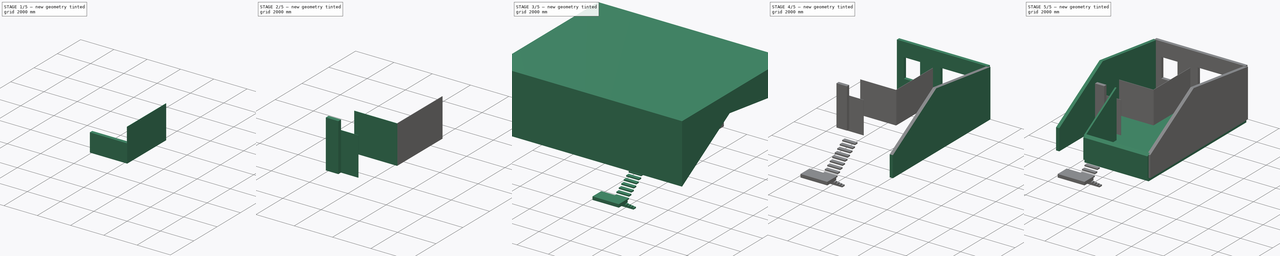
[diagram: build sequence overview — one tinted view per stage of 5, left to right]
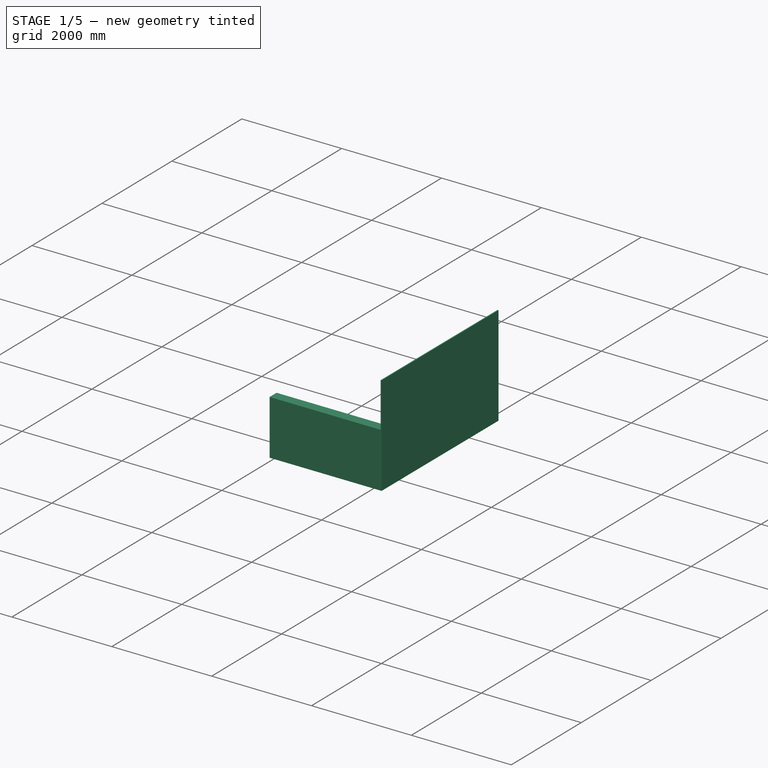
[diagram: stage 1 of 5 — iso view after this stage's code; geometry added in this stage tinted green]
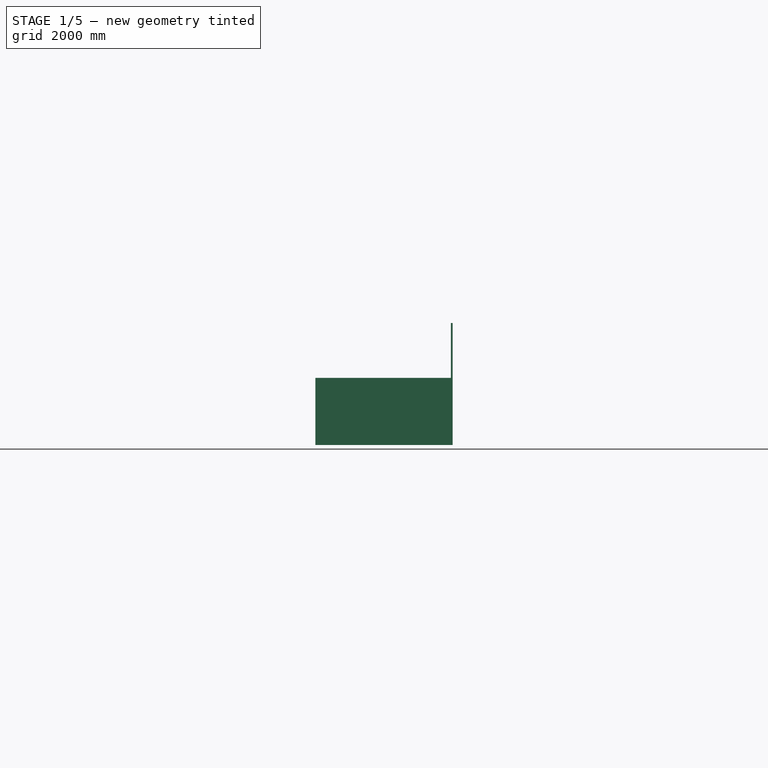
[diagram: stage 1 of 5 — front view after this stage's code; geometry added in this stage tinted green]
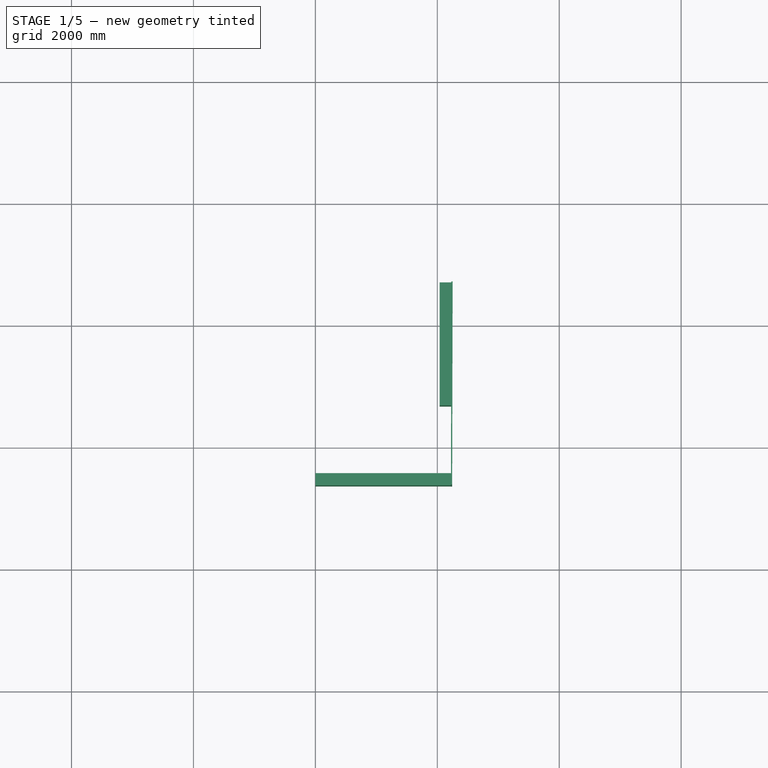
[diagram: stage 1 of 5 — top view after this stage's code; geometry added in this stage tinted green]
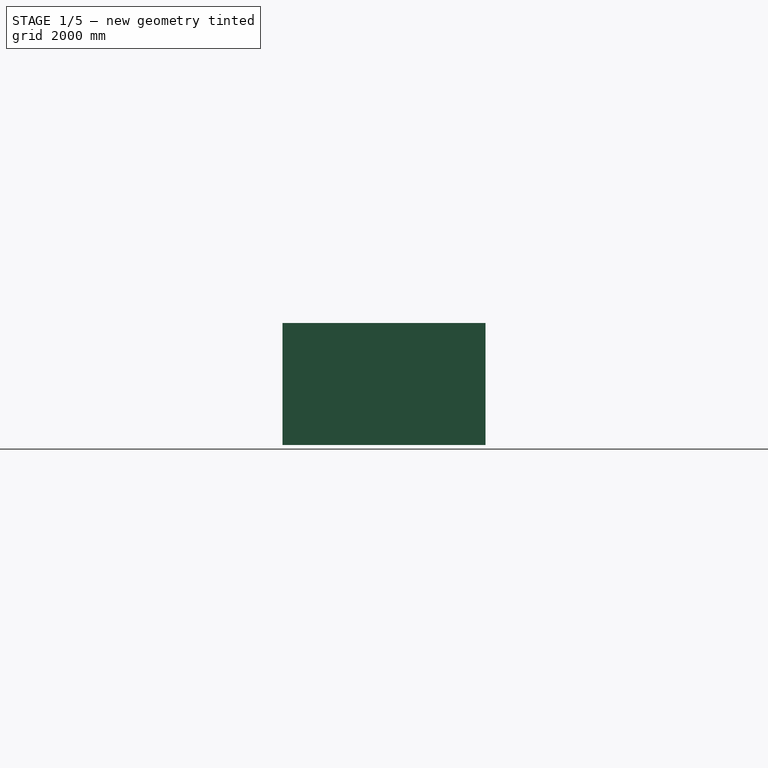
[diagram: stage 1 of 5 — right view after this stage's code; geometry added in this stage tinted green]
FCSTD DOCUMENT  (FreeCAD 0.16R6712 (Git))
Label: maisonFabry6
License: All rights reserved
LicenseURL: http://en.wikipedia.org/wiki/All_rights_reserved
objects: Part::FeaturePython×24, Sketcher::SketchObject×12, Raytracing::RayFeature×7, Part::Part2DObjectPython×6, PartDesign::Pad×3, App::DocumentObjectGroup×3, App::FeaturePython×2, App::DocumentObjectGroupPython×1, Drawing::FeaturePage×1, Raytracing::RayProject×1
note: 50 computed .brp shape members not serialized (recipe doc carries the construction recipe); baked Part::Feature solids carry a one-line shape summary decoded from their .brp

FEATURE [Sketcher::SketchObject] TraceDuMur
  sketch-geometry (1):
    g0: LineSegment StartX=2093.05 StartY=8700 StartZ=0 EndX=2093.05 EndY=6687.93 EndZ=0
FEATURE [Sketcher::SketchObject] TraceDuMur001
  sketch-geometry (1):
    g0: LineSegment StartX=2138.62 StartY=8700 StartZ=0 EndX=2138.62 EndY=6681.19 EndZ=0
FEATURE [Part::FeaturePython] Wall008  label="WallSDBDroite"  # WARN: FeaturePython — macro-defined, semantics opaque (R4)
  Align = 2
  Base = -> TraceDuMur001
  Face = 0
  Height = 1100
  Length = 2018.81
  MoveWithHost = false
  Normal = (0,0,1)
  Role = 0
  Width = 200
FEATURE [Sketcher::SketchObject] TraceDuMur002
  sketch-geometry (1):
    g0: LineSegment StartX=0 StartY=5469.93 StartZ=0 EndX=2222.77 EndY=5469.93 EndZ=0
FEATURE [Part::FeaturePython] Wall009  label="WallSDBFond"  # WARN: FeaturePython — macro-defined, semantics opaque (R4)
  Align = 2
  Base = -> TraceDuMur002
  Face = 0
  Height = 1100
  Length = 2222.77
  MoveWithHost = false
  Normal = (0,0,1)
  Role = 0
  Width = 200
FEATURE [Sketcher::SketchObject] TraceDuMur003
  sketch-geometry (1):
    g0: LineSegment StartX=2241.76 StartY=8700 StartZ=0 EndX=2233.44 EndY=5368.67 EndZ=0
FEATURE [Part::FeaturePython] Wall010  label="WallVerreDroite"  # WARN: FeaturePython — macro-defined, semantics opaque (R4)
  Align = 2
  Base = -> TraceDuMur003
  Face = 0
  Height = 2000
  Length = 3331.34
  MoveWithHost = false
  Normal = (0,0,1)
  Role = 0
  Width = 20
FEATURE [Part::FeaturePython] Wall018  label="Clone of WallSDBDroite"  # WARN: FeaturePython — macro-defined, semantics opaque (R4)
  Align = 2
  CloneOf = -> Wall008
  Face = 0
  Height = 3000
  Length = 0
  MoveWithHost = false
  Normal = (0,0,0)
  Role = 0
  Width = 200
FEATURE [Part::FeaturePython] Wall019  label="Clone of WallSDBFond"  # WARN: FeaturePython — macro-defined, semantics opaque (R4)
  Align = 2
  CloneOf = -> Wall009
  Face = 0
  Height = 3000
  Length = 0
  MoveWithHost = false
  Normal = (0,0,0)
  Role = 0
  Width = 200
FEATURE [Raytracing::RayFeature] Clone_View
  Result = <blob: 75777 chars omitted>
  Source = -> Clone
  Transparency = 0
FEATURE [Raytracing::RayFeature] Wall019_View
  Result = <blob: 2870 chars omitted>
  Source = -> Wall019
  Transparency = 0
FEATURE [Raytracing::RayFeature] Wall018_View
  Result = <blob: 2906 chars omitted>
  Source = -> Wall018
  Transparency = 0
FEATURE [Raytracing::RayFeature] Wall017_View
  Result = <blob: 3215 chars omitted>
  Source = -> Wall017
  Transparency = 85
FEATURE [Raytracing::RayFeature] Wall015_View
  Result = <blob: 3245 chars omitted>
  Source = -> Wall015
  Transparency = 85
FEATURE [Raytracing::RayFeature] Wall013_View
  Result = <blob: 2966 chars omitted>
  Source = -> Wall013
  Transparency = 0
FEATURE [Raytracing::RayFeature] Wall016_View
  Result = <blob: 2887 chars omitted>
  Source = -> Wall016
  Transparency = 85
FEATURE [Raytracing::RayProject] PovProject
  Camera = // declares positon and view direction\n\n// Generated by FreeCAD (http://www.freecadweb.org/)\n#declare cam_location =  <-1911.46,5546.76,-4752.67>;\n#declare cam_look_at  = <1785.37,861.283,3259.83>;\n#declare cam_sky      = <0.198227,0.883213,0.425019>;\n#declare cam_angle    = 45; \ncamera {\n  location  cam_location\n  look_at   cam_look_at\n  sky       cam_sky\n  angle     cam_angle \n  right x*800/600\n}
  Group = -> [Clone_View,Wall019_View,Wall018_View,Wall017_View,Wall015_View,Wall013_View,Wall016_View]
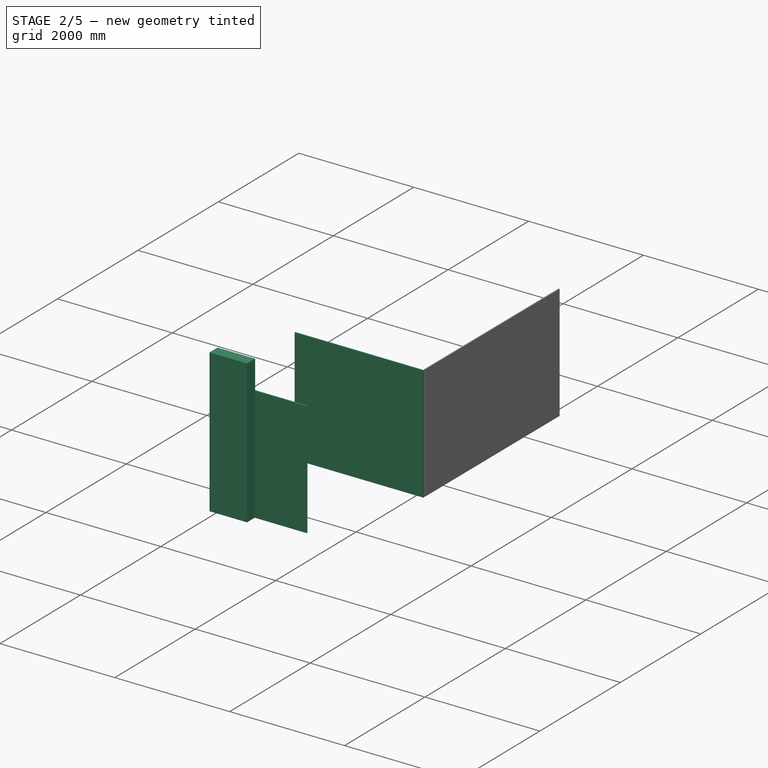
[diagram: stage 2 of 5 — iso view after this stage's code; geometry added in this stage tinted green]
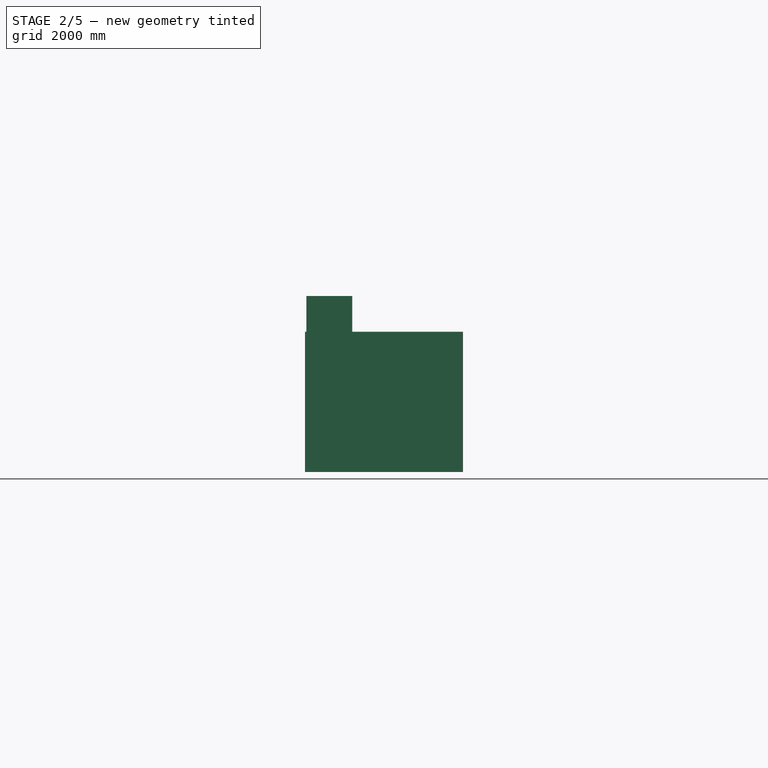
[diagram: stage 2 of 5 — front view after this stage's code; geometry added in this stage tinted green]
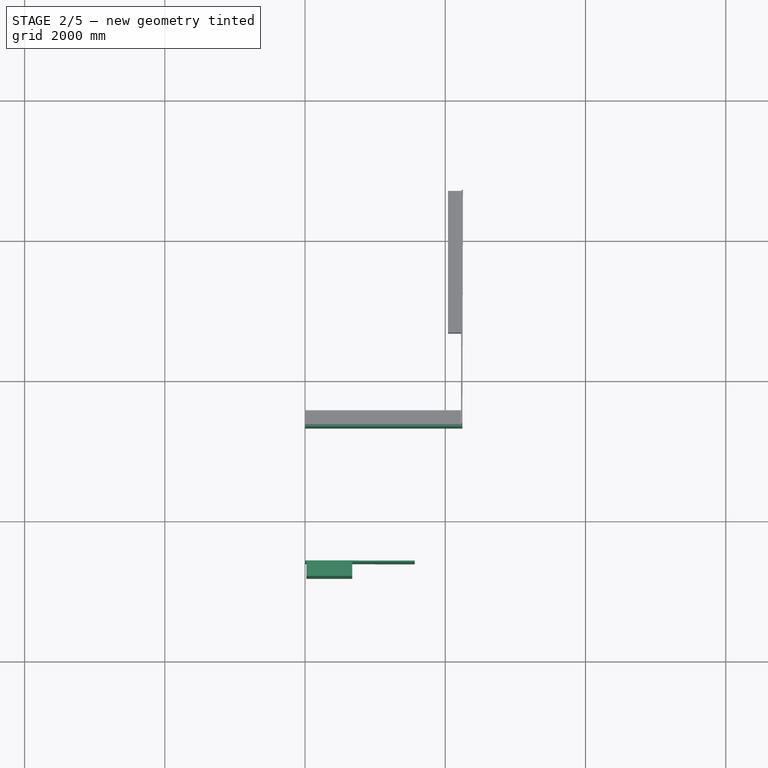
[diagram: stage 2 of 5 — top view after this stage's code; geometry added in this stage tinted green]
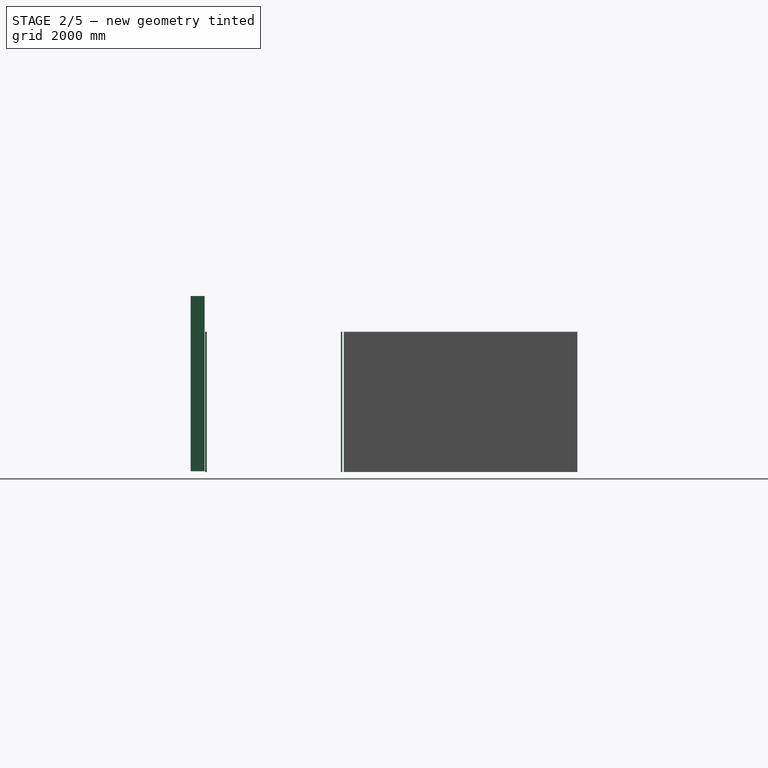
[diagram: stage 2 of 5 — right view after this stage's code; geometry added in this stage tinted green]
FEATURE [App::DocumentObjectGroup] Groupe  label="Murs"
  Group = -> [Wall006,Wall003,Wall002,Wall,Wall001]
FEATURE [App::DocumentObjectGroup] Groupe001  label="Escalier002"
  Group = -> [Stairs,Stairs001,Pad]
FEATURE [App::DocumentObjectGroupPython] Building  # scripted group (container) (typed FeaturePython)
  BuildingType = 0
  Group = -> [Pad001,Groupe,Groupe001,Pad,Stairs001,Stairs,Wall006,Wall003,Wall002,Wall,Wall001]
  Height = 0
FEATURE [App::FeaturePython] Section  label="SectionLastFloorUp"  # WARN: FeaturePython — macro-defined, semantics opaque (R4)
  Objects = -> [Building]
  OnlySolids = true
  Placement = pos=(2750,4400,1110) rot=(0,0,1;0rad)
FEATURE [App::FeaturePython] Section001  label="Section"  # WARN: FeaturePython — macro-defined, semantics opaque (R4)
  Objects = -> [Building]
  OnlySolids = true
  Placement = pos=(2750,4100,0) rot=(1,0,0;1.5708rad)
FEATURE [App::DocumentObjectGroup] Groupe002  label="Sections"
  Group = -> [Section,Section001]
FEATURE [Part::Part2DObjectPython] Line005  # Draft 2D object (typed FeaturePython)
  ChamferSize = 0
  Closed = false
  End = (672.395,3284.08,1110)
  FilletRadius = 0
  Length = 653.892
  MakeFace = true
  Points = (2) [(18.5029,3284.08,1110),(672.395,3284.08,1110)]
  Start = (18.5029,3284.08,1110)
  Subdivisions = 0
FEATURE [Part::FeaturePython] Wall007  label="Wall002"  # WARN: FeaturePython — macro-defined, semantics opaque (R4)
  Align = 2
  Base = -> Line005
  Face = 0
  Height = 2500
  Length = 653.892
  MoveWithHost = false
  Normal = (0,0,0)
  Placement = pos=(0,0,-1100) rot=(0,0,1;0rad)
  Role = 0
  Width = 200
FEATURE [Sketcher::SketchObject] TraceDuMur004
  sketch-geometry (1):
    g0: LineSegment StartX=0 StartY=5336.71 StartZ=0 EndX=2242.86 EndY=5336.71 EndZ=0
FEATURE [Part::FeaturePython] Wall011  label="WallVerreFond"  # WARN: FeaturePython — macro-defined, semantics opaque (R4)
  Align = 2
  Base = -> TraceDuMur004
  Face = 0
  Height = 2000
  Length = 2242.86
  MoveWithHost = false
  Normal = (0,0,1)
  Role = 0
  Width = 20
FEATURE [Sketcher::SketchObject] TraceDuMur005
  sketch-geometry (1):
    g0: LineSegment StartX=0 StartY=3403.57 StartZ=0 EndX=1564.53 EndY=3401.18 EndZ=0
FEATURE [Part::FeaturePython] Wall012  label="WallVerreEntree"  # WARN: FeaturePython — macro-defined, semantics opaque (R4)
  Align = 2
  Base = -> TraceDuMur005
  Face = 0
  Height = 2000
  Length = 1564.53
  MoveWithHost = false
  Normal = (0,0,1)
  Role = 0
  Width = 20
FEATURE [Part::FeaturePython] Wall015  label="Clone of WallVerreEntree"  # WARN: FeaturePython — macro-defined, semantics opaque (R4)
  Align = 2
  CloneOf = -> Wall012
  Face = 0
  Height = 3000
  Length = 0
  MoveWithHost = false
  Normal = (0,0,0)
  Role = 0
  Width = 200
FEATURE [Part::FeaturePython] Wall016  label="Clone of WallVerreFond"  # WARN: FeaturePython — macro-defined, semantics opaque (R4)
  Align = 2
  CloneOf = -> Wall011
  Face = 0
  Height = 3000
  Length = 0
  MoveWithHost = false
  Normal = (0,0,0)
  Role = 0
  Width = 200
FEATURE [Part::FeaturePython] Wall017  label="Clone of WallVerreDroite"  # WARN: FeaturePython — macro-defined, semantics opaque (R4)
  Align = 2
  CloneOf = -> Wall010
  Face = 0
  Height = 3000
  Length = 0
  MoveWithHost = false
  Normal = (0,0,0)
  Role = 0
  Width = 200
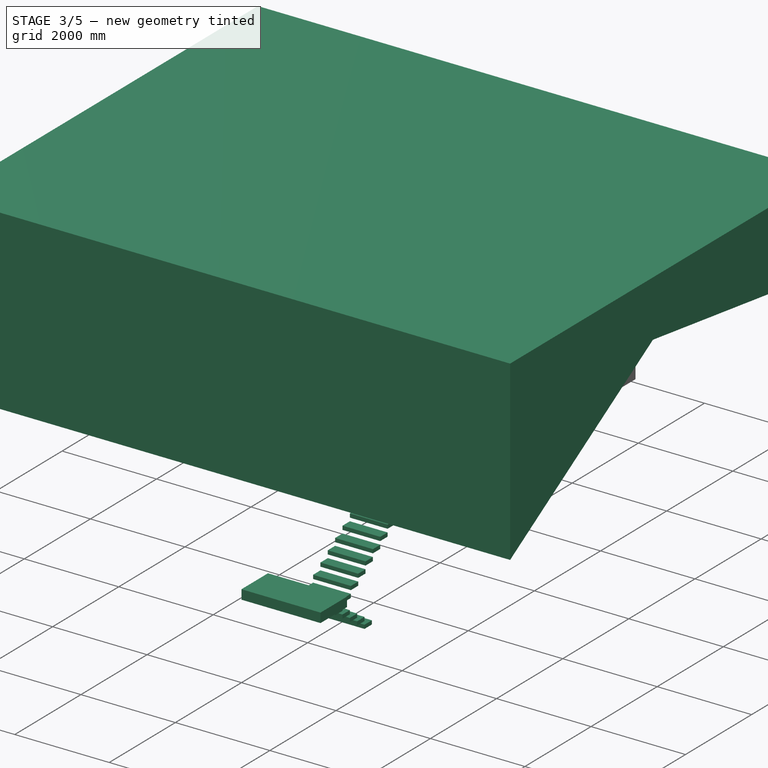
[diagram: stage 3 of 5 — iso view after this stage's code; geometry added in this stage tinted green]
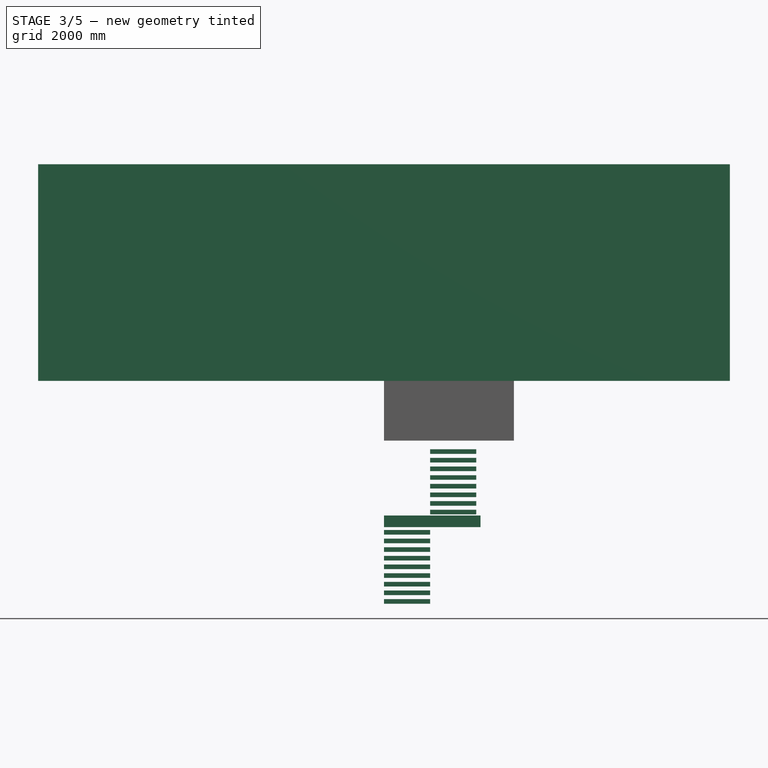
[diagram: stage 3 of 5 — front view after this stage's code; geometry added in this stage tinted green]
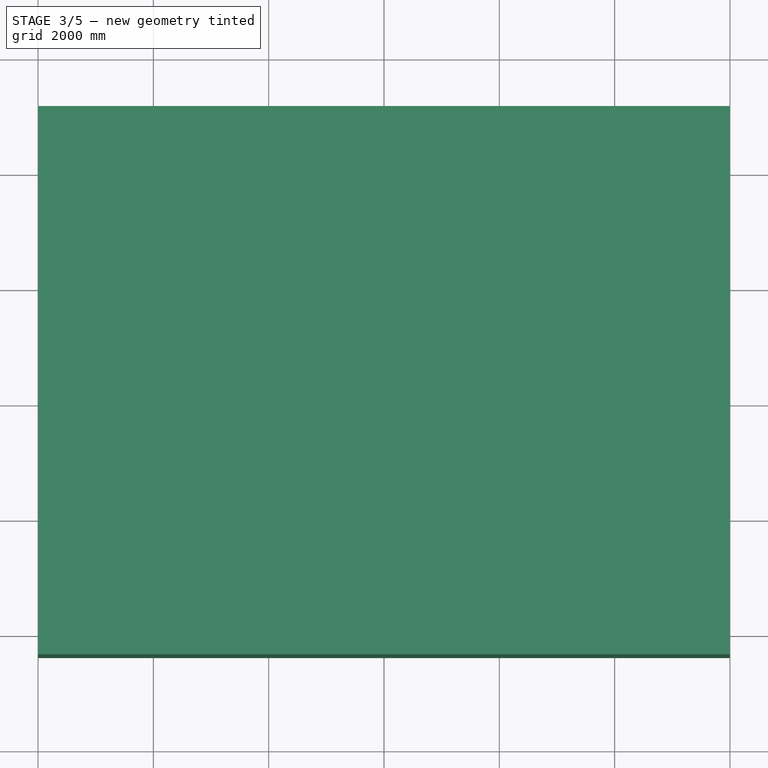
[diagram: stage 3 of 5 — top view after this stage's code; geometry added in this stage tinted green]
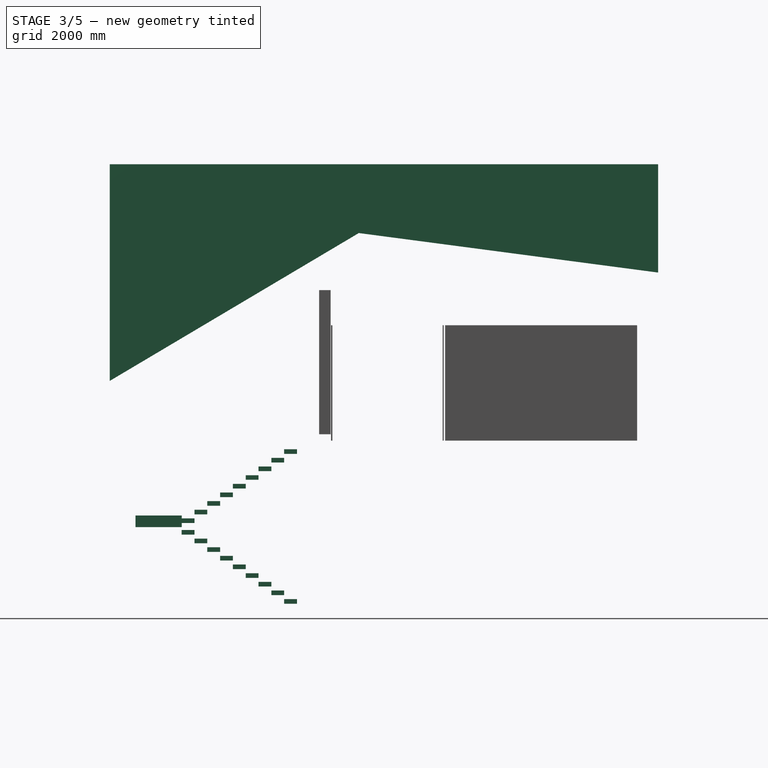
[diagram: stage 3 of 5 — right view after this stage's code; geometry added in this stage tinted green]
FEATURE [Part::FeaturePython] Stairs  label="EscalierUp"  # WARN: FeaturePython — macro-defined, semantics opaque (R4)
  Align = 0
  BlondelRatio = 522.222
  Height = 1500
  Landings = 0
  Length = 2000
  MoveWithHost = false
  Nosing = 0
  NumberOfSteps = 10
  Placement = pos=(800,800,-1500) rot=(0,0,1;1.5708rad)
  RiserHeight = 150
  Role = 0
  StringerWidth = 0
  Structure = 0
  StructureOffset = 0
  StructureThickness = 0
  TreadDepth = 222.222
  TreadThickness = 80
  Width = 800
  Winders = 0
FEATURE [Part::FeaturePython] Stairs001  label="EscalierDown"  # WARN: FeaturePython — macro-defined, semantics opaque (R4)
  Align = 0
  BlondelRatio = 522.222
  Height = 1500
  Landings = 0
  Length = 2000
  MoveWithHost = false
  Nosing = 0
  NumberOfSteps = 10
  Placement = pos=(800,2800,-2900) rot=(0,0,-1;1.5708rad)
  RiserHeight = 150
  Role = 0
  StringerWidth = 0
  Structure = 0
  StructureOffset = 0
  StructureThickness = 0
  TreadDepth = 222.222
  TreadThickness = 80
  Width = 800
  Winders = 0
FEATURE [Sketcher::SketchObject] Sketch001  label="SketchPalierDernierEtage"
  Placement = pos=(0,0,-1500) rot=(0,0,1;0rad)
  sketch-geometry (4):
    g0: LineSegment StartX=0 StartY=0 StartZ=0 EndX=1673 EndY=0 EndZ=0
    g1: LineSegment StartX=1673 StartY=0 StartZ=0 EndX=1673 EndY=800.857 EndZ=0
    g2: LineSegment StartX=1673 StartY=800.857 StartZ=0 EndX=0 EndY=800.857 EndZ=0
    g3: LineSegment StartX=0 StartY=800.857 StartZ=0 EndX=0 EndY=0 EndZ=0
  constraints (9):
    c: Coincident(g0,g1)
    c: Coincident(g1,g2)
    c: Coincident(g2,g3)
    c: Coincident(g3,g0)
    c: Horizontal(g0)
    c: Horizontal(g2)
    c: Vertical(g1)
    c: Vertical(g3)
    c: Coincident(g0,g-1)
FEATURE [PartDesign::Pad] Pad  label="PadPalier"
  Length = 200
  Length2 = 100
  Placement = pos=(0,0,-1500) rot=(0,0,1;0rad)
  Sketch = -> Sketch001
  Type = 0
FEATURE [Sketcher::SketchObject] Sketch008
  Placement = pos=(0,0,0) rot=(0.57735,0.57735,0.57735;2.0944rad)
  sketch-geometry (5):
    g0: LineSegment StartX=-446.233 StartY=1036 StartZ=0 EndX=3872.94 EndY=3600 EndZ=0
    g1: LineSegment StartX=3872.94 StartY=3600 StartZ=0 EndX=9065 EndY=2914.48 EndZ=0
    g2: LineSegment StartX=9065 StartY=2914.48 StartZ=0 EndX=9065 EndY=4793.36 EndZ=0
    g3: LineSegment StartX=9065 StartY=4793.36 StartZ=0 EndX=-446.233 EndY=4793.36 EndZ=0
    g4: LineSegment StartX=-446.233 StartY=4793.36 StartZ=0 EndX=-446.233 EndY=1036 EndZ=0
  constraints (12):
    c: Coincident(g0,g1)
    c: Coincident(g1,g2)
    c: Vertical(g2)
    c: Coincident(g2,g3)
    c: Horizontal(g3)
    c: Coincident(g3,g4)
    c: Coincident(g4,g0)
    c: Vertical(g4)
    c: DistanceY(g-1,g0) = 3600
    c: DistanceY(g-1,g1) = 2914.48
    c: DistanceY(g-1,g0) = 1036
    c: DistanceX(g0) = 3872.94
FEATURE [PartDesign::Pad] Pad002
  Length = 12000
  Length2 = 100
  Midplane = true
  Placement = pos=(0,0,0) rot=(0.57735,0.57735,0.57735;2.0944rad)
  Sketch = -> Sketch008
  Type = 0
FEATURE [Part::FeaturePython] Wall013  label="Clone of Wall002"  # WARN: FeaturePython — macro-defined, semantics opaque (R4)
  Align = 2
  CloneOf = -> Wall007
  Face = 0
  Height = 3000
  Length = 0
  MoveWithHost = false
  Normal = (0,0,0)
  Placement = pos=(0,0,-1000) rot=(0,0,1;0rad)
  Role = 0
  Width = 200
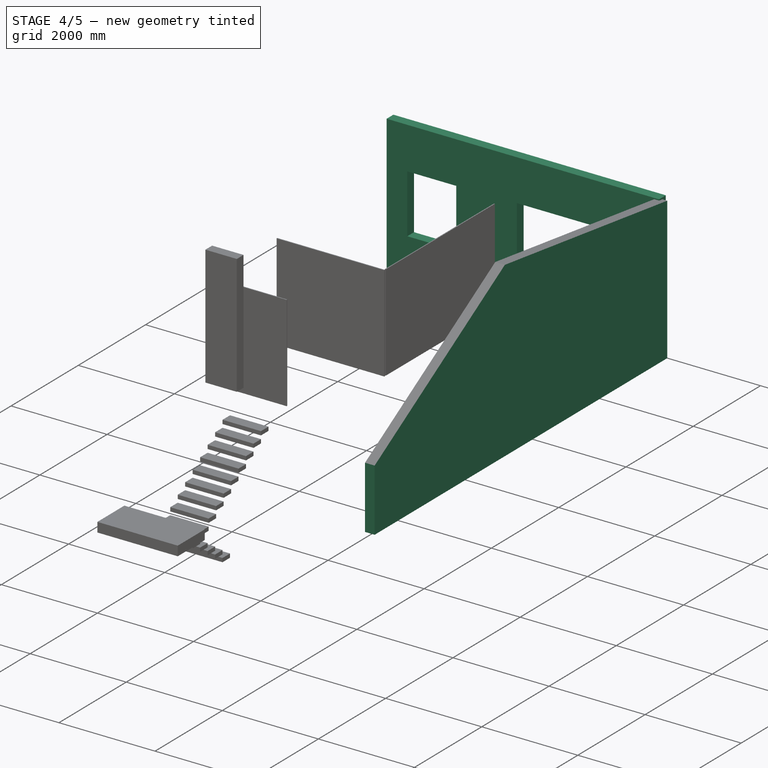
[diagram: stage 4 of 5 — iso view after this stage's code; geometry added in this stage tinted green]
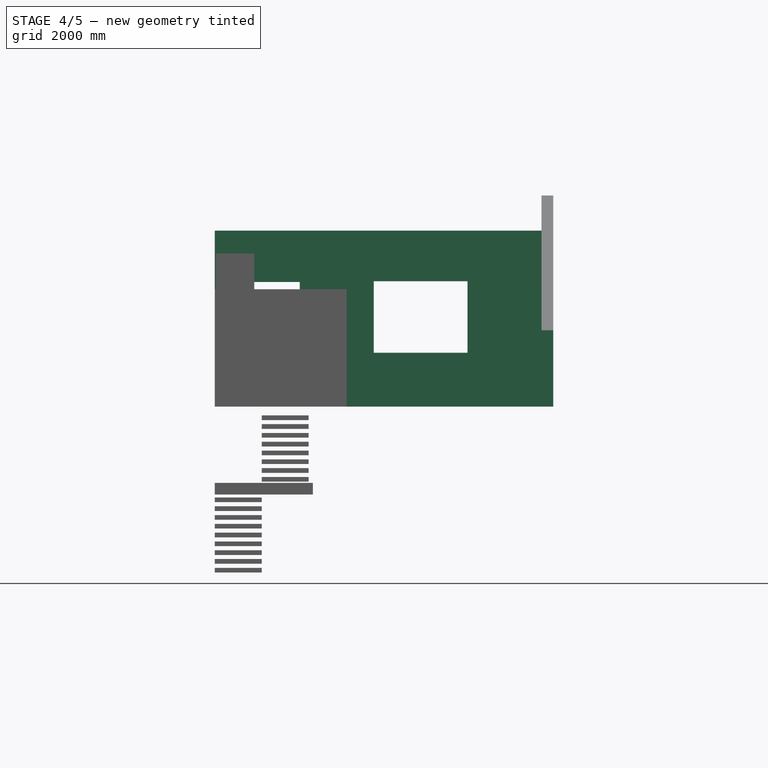
[diagram: stage 4 of 5 — front view after this stage's code; geometry added in this stage tinted green]
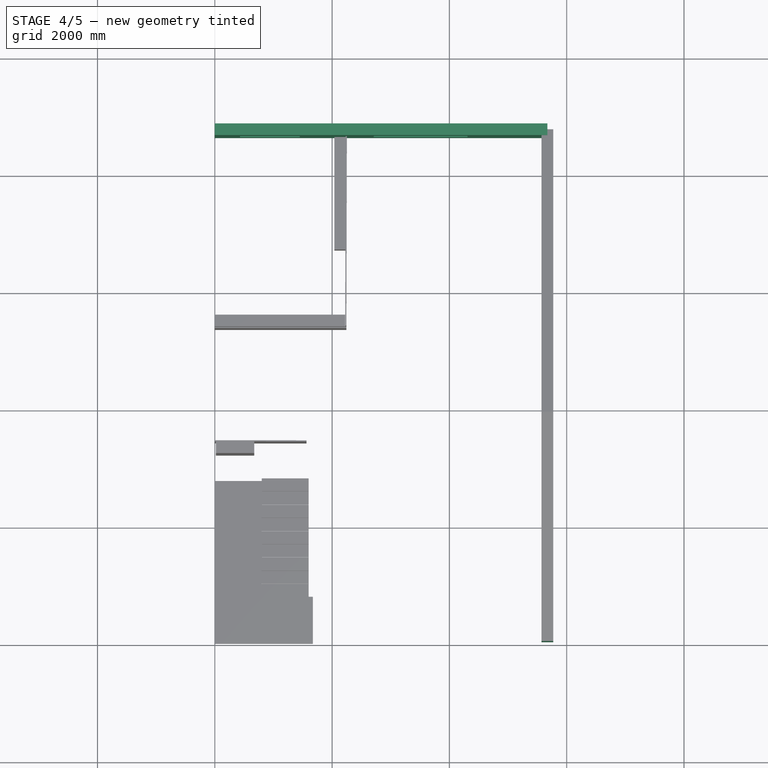
[diagram: stage 4 of 5 — top view after this stage's code; geometry added in this stage tinted green]
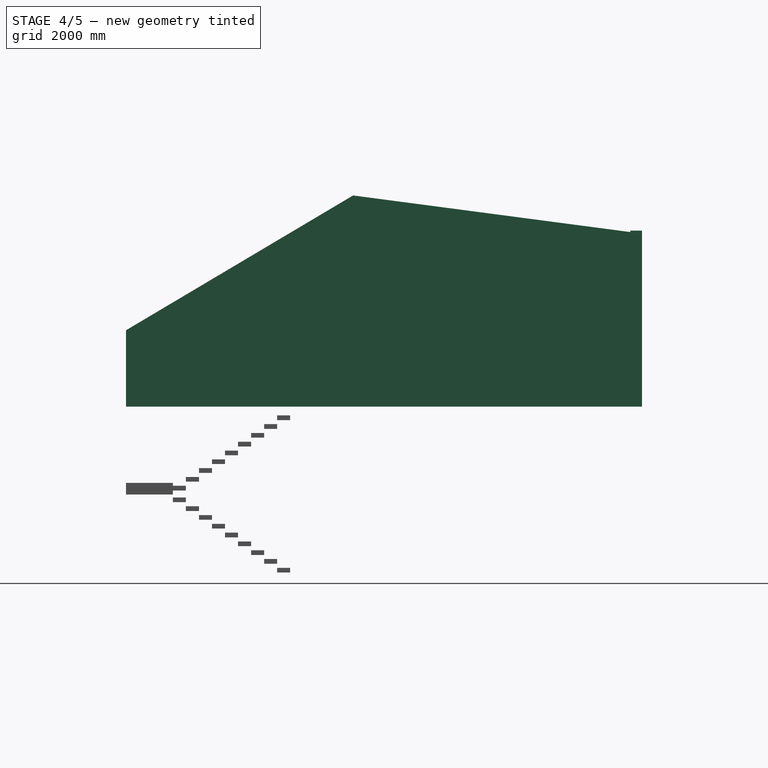
[diagram: stage 4 of 5 — right view after this stage's code; geometry added in this stage tinted green]
FEATURE [Part::Part2DObjectPython] Line  label="LigneMurGauche"  # Draft 2D object (typed FeaturePython)
  ChamferSize = 0
  Closed = false
  End = (0,0,0)
  FilletRadius = 0
  Length = 8700
  MakeFace = true
  Points = (2) [(0,8700,0),(0,0,0)]
  Start = (0,8700,0)
  Subdivisions = 0
FEATURE [Part::Part2DObjectPython] Line001  label="LigneMurMillieu"  # Draft 2D object (typed FeaturePython)
  ChamferSize = 0
  Closed = false
  End = (1670,0,0)
  FilletRadius = 0
  Length = 2789.09
  MakeFace = true
  Points = (2) [(1670,2789.09,0),(1670,0,0)]
  Start = (1670,2789.09,0)
  Subdivisions = 0
FEATURE [Part::Part2DObjectPython] Line002  label="LigneMurJardin"  # Draft 2D object (typed FeaturePython)
  ChamferSize = 0
  Closed = false
  End = (5670,0,0)
  FilletRadius = 0
  Length = 4000.33
  MakeFace = true
  Points = (2) [(1669.67,0,0),(5670,0,0)]
  Start = (1669.67,0,0)
  Subdivisions = 0
FEATURE [Part::Part2DObjectPython] Line003  label="LigneMurRue"  # Draft 2D object (typed FeaturePython)
  ChamferSize = 0
  Closed = false
  End = (5670,8700,0)
  FilletRadius = 0
  Length = 5670
  MakeFace = true
  Points = (2) [(0,8700,0),(5670,8700,0)]
  Start = (0,8700,0)
  Subdivisions = 0
FEATURE [Part::Part2DObjectPython] Line004  label="LigneMurDroite"  # Draft 2D object (typed FeaturePython)
  ChamferSize = 0
  Closed = false
  End = (5669.95,8700,0)
  FilletRadius = 0
  Length = 8698.42
  MakeFace = true
  Points = (2) [(5670,1.58352,0),(5669.95,8700,0)]
  Start = (5670,1.58352,0)
  Subdivisions = 0
FEATURE [Part::FeaturePython] Wall004  label="WallRue"  # WARN: FeaturePython — macro-defined, semantics opaque (R4)
  Align = 2
  Base = -> Line003
  Face = 0
  Height = 3000
  Length = 5670
  MoveWithHost = false
  Normal = (0,0,0)
  Role = 0
  Width = 200
FEATURE [Sketcher::SketchObject] Sketch006
  Placement = pos=(429,5.38826e-05,904) rot=(1,0,0;1.5708rad)
  sketch-geometry (24):
    g0: LineSegment StartX=0 StartY=0 StartZ=0 EndX=1020 EndY=0 EndZ=0
    g1: LineSegment StartX=1020 StartY=0 StartZ=0 EndX=1020 EndY=1220 EndZ=0
    g2: LineSegment StartX=1020 StartY=1220 StartZ=0 EndX=0 EndY=1220 EndZ=0
    g3: LineSegment StartX=0 StartY=1220 StartZ=0 EndX=0 EndY=0 EndZ=0
    g4: LineSegment StartX=50 StartY=50 StartZ=0 EndX=970 EndY=50 EndZ=0
    g5: LineSegment StartX=970 StartY=50 StartZ=0 EndX=970 EndY=1170 EndZ=0
    g6: LineSegment StartX=970 StartY=1170 StartZ=0 EndX=50 EndY=1170 EndZ=0
    g7: LineSegment StartX=50 StartY=1170 StartZ=0 EndX=50 EndY=50 EndZ=0
    g8: LineSegment StartX=55 StartY=55 StartZ=0 EndX=507.5 EndY=55 EndZ=0
    g9: LineSegment StartX=507.5 StartY=55 StartZ=0 EndX=507.5 EndY=1165 EndZ=0
    g10: LineSegment StartX=507.5 StartY=1165 StartZ=0 EndX=55 EndY=1165 EndZ=0
    g11: LineSegment StartX=55 StartY=1165 StartZ=0 EndX=55 EndY=55 EndZ=0
    g12: LineSegment StartX=105 StartY=105 StartZ=0 EndX=457.5 EndY=105 EndZ=0
    g13: LineSegment StartX=457.5 StartY=105 StartZ=0 EndX=457.5 EndY=1115 EndZ=0
    g14: LineSegment StartX=457.5 StartY=1115 StartZ=0 EndX=105 EndY=1115 EndZ=0
    g15: LineSegment StartX=105 StartY=1115 StartZ=0 EndX=105 EndY=105 EndZ=0
    g16: LineSegment StartX=512.5 StartY=55 StartZ=0 EndX=965 EndY=55 EndZ=0
    g17: LineSegment StartX=965 StartY=55 StartZ=0 EndX=965 EndY=1165 EndZ=0
    g18: LineSegment StartX=965 StartY=1165 StartZ=0 EndX=512.5 EndY=1165 EndZ=0
    g19: LineSegment StartX=512.5 StartY=1165 StartZ=0 EndX=512.5 EndY=55 EndZ=0
    g20: LineSegment StartX=562.5 StartY=105 StartZ=0 EndX=915 EndY=105 EndZ=0
    g21: LineSegment StartX=915 StartY=105 StartZ=0 EndX=915 EndY=1115 EndZ=0
    g22: LineSegment StartX=915 StartY=1115 StartZ=0 EndX=562.5 EndY=1115 EndZ=0
    g23: LineSegment StartX=562.5 StartY=1115 StartZ=0 EndX=562.5 EndY=105 EndZ=0
  constraints (71):
    c: Coincident(g0,g1)
    c: Coincident(g1,g2)
    c: Coincident(g2,g3)
    c: Coincident(g3,g0)
    c: Horizontal(g0)
    c: Horizontal(g2)
    c: Vertical(g1)
    c: Vertical(g3)
    c: Coincident(g4,g5)
    c: Coincident(g5,g6)
    c: Coincident(g6,g7)
    c: Coincident(g7,g4)
    c: Horizontal(g4)
    c: Horizontal(g6)
    c: Vertical(g5)
    c: Vertical(g7)
    c: DistanceY(g1) = 1220
    c: DistanceX(g0) = 1020
    c: DistanceY(g6,g2) = 50
    c: DistanceX(g2,g6) = 50
    c: DistanceX(g4,g0) = 50
    c: DistanceY(g0,g4) = 50
    c: Coincident(g0,g-1)
    c: Coincident(g8,g9)
    c: Coincident(g9,g10)
    c: Coincident(g10,g11)
    c: Coincident(g11,g8)
    c: Horizontal(g8)
    c: Horizontal(g10)
    c: Vertical(g9)
    c: Vertical(g11)
    c: Coincident(g12,g13)
    c: Coincident(g13,g14)
    c: Coincident(g14,g15)
    c: Coincident(g15,g12)
    c: Horizontal(g12)
    c: Horizontal(g14)
    c: Vertical(g13)
    c: Vertical(g15)
    c: Coincident(g16,g17)
    c: Coincident(g17,g18)
    c: Coincident(g18,g19)
    c: Coincident(g19,g16)
    c: Horizontal(g16)
    c: Horizontal(g18)
    c: Vertical(g17)
    c: Vertical(g19)
    c: Coincident(g20,g21)
    c: Coincident(g21,g22)
    c: Coincident(g22,g23)
    c: Coincident(g23,g20)
    c: Horizontal(g20)
    c: Horizontal(g22)
    c: Vertical(g21)
    c: Vertical(g23)
    c: DistanceY(g8,g12) = 50
    c: DistanceX(g8,g12) = 50
    c: DistanceX(g21,g17) = 50
    c: DistanceY(g21,g17) = 50
    c: DistanceX(g16,g20) = 50
    c: DistanceX(g14,g10) = 50
    c: Equal(g22,g14)
    c: DistanceY(g8,g16) = 0
    c: DistanceY(g10,g18) = 0
    c: DistanceX(g4,g8) = 5
    c: DistanceY(g4,g8) = 5
    c: DistanceX(g6,g18) = -5
    c: DistanceY(g6,g18) = -5
    c: DistanceX(g9,g19) = 5
    c: PointOnObject(g13,g22)
    c: PointOnObject(g20,g12)
FEATURE [Part::FeaturePython] Window  # WARN: FeaturePython — macro-defined, semantics opaque (R4)
  Base = -> Sketch006
  Height = 1220
  HoleDepth = 0
  MoveWithHost = true
  Normal = (0,1,0)
  Placement = pos=(0,8550,0) rot=(0,0,1;0rad)
  Preset = 3
  Role = 0
  Width = 1020
  WindowParts = OuterFrame | Frame | Wire0,Wire1 | 150.0 | 50.0 | LeftFrame | Frame | Wire2,Wire3 | 50.0 | 100.0 | LeftGlass | Glass panel | Wire3 | 5.0 | 125.0 | RightFrame | Frame | Wire4,Wire5 | 50.0 | 100.0 | RightGlass | Glass panel | Wire5 | 5.0 | 125.0
FEATURE [Part::FeaturePython] Wall005  label="Wall"  # WARN: FeaturePython — macro-defined, semantics opaque (R4)
  Align = 2
  Base = -> Wall004
  Face = 0
  Height = 3000
  Length = 0
  MoveWithHost = false
  Normal = (0,0,0)
  Role = 0
  Subtractions = -> [Window]
  Width = 200
FEATURE [Sketcher::SketchObject] Sketch007
  Placement = pos=(4219.33,6736.59,2517.26) rot=(1,0,0;1.5708rad)
  sketch-geometry (24):
    g0: LineSegment StartX=0 StartY=0 StartZ=0 EndX=1600 EndY=0 EndZ=0
    g1: LineSegment StartX=1600 StartY=0 StartZ=0 EndX=1600 EndY=1220 EndZ=0
    g2: LineSegment StartX=1600 StartY=1220 StartZ=0 EndX=0 EndY=1220 EndZ=0
    g3: LineSegment StartX=0 StartY=1220 StartZ=0 EndX=0 EndY=0 EndZ=0
    g4: LineSegment StartX=50 StartY=50 StartZ=0 EndX=1550 EndY=50 EndZ=0
    g5: LineSegment StartX=1550 StartY=50 StartZ=0 EndX=1550 EndY=1170 EndZ=0
    g6: LineSegment StartX=1550 StartY=1170 StartZ=0 EndX=50 EndY=1170 EndZ=0
    g7: LineSegment StartX=50 StartY=1170 StartZ=0 EndX=50 EndY=50 EndZ=0
    g8: LineSegment StartX=55 StartY=55 StartZ=0 EndX=797.5 EndY=55 EndZ=0
    g9: LineSegment StartX=797.5 StartY=55 StartZ=0 EndX=797.5 EndY=1165 EndZ=0
    g10: LineSegment StartX=797.5 StartY=1165 StartZ=0 EndX=55 EndY=1165 EndZ=0
    g11: LineSegment StartX=55 StartY=1165 StartZ=0 EndX=55 EndY=55 EndZ=0
    g12: LineSegment StartX=105 StartY=105 StartZ=0 EndX=747.5 EndY=105 EndZ=0
    g13: LineSegment StartX=747.5 StartY=105 StartZ=0 EndX=747.5 EndY=1115 EndZ=0
    g14: LineSegment StartX=747.5 StartY=1115 StartZ=0 EndX=105 EndY=1115 EndZ=0
    g15: LineSegment StartX=105 StartY=1115 StartZ=0 EndX=105 EndY=105 EndZ=0
    g16: LineSegment StartX=802.5 StartY=55 StartZ=0 EndX=1545 EndY=55 EndZ=0
    g17: LineSegment StartX=1545 StartY=55 StartZ=0 EndX=1545 EndY=1165 EndZ=0
    g18: LineSegment StartX=1545 StartY=1165 StartZ=0 EndX=802.5 EndY=1165 EndZ=0
    g19: LineSegment StartX=802.5 StartY=1165 StartZ=0 EndX=802.5 EndY=55 EndZ=0
    g20: LineSegment StartX=852.5 StartY=105 StartZ=0 EndX=1495 EndY=105 EndZ=0
    g21: LineSegment StartX=1495 StartY=105 StartZ=0 EndX=1495 EndY=1115 EndZ=0
    g22: LineSegment StartX=1495 StartY=1115 StartZ=0 EndX=852.5 EndY=1115 EndZ=0
    g23: LineSegment StartX=852.5 StartY=1115 StartZ=0 EndX=852.5 EndY=105 EndZ=0
  constraints (71):
    c: Coincident(g0,g1)
    c: Coincident(g1,g2)
    c: Coincident(g2,g3)
    c: Coincident(g3,g0)
    c: Horizontal(g0)
    c: Horizontal(g2)
    c: Vertical(g1)
    c: Vertical(g3)
    c: Coincident(g4,g5)
    c: Coincident(g5,g6)
    c: Coincident(g6,g7)
    c: Coincident(g7,g4)
    c: Horizontal(g4)
    c: Horizontal(g6)
    c: Vertical(g5)
    c: Vertical(g7)
    c: DistanceY(g1) = 1220
    c: DistanceX(g0) = 1600
    c: DistanceY(g6,g2) = 50
    c: DistanceX(g2,g6) = 50
    c: DistanceX(g4,g0) = 50
    c: DistanceY(g0,g4) = 50
    c: Coincident(g0,g-1)
    c: Coincident(g8,g9)
    c: Coincident(g9,g10)
    c: Coincident(g10,g11)
    c: Coincident(g11,g8)
    c: Horizontal(g8)
    c: Horizontal(g10)
    c: Vertical(g9)
    c: Vertical(g11)
    c: Coincident(g12,g13)
    c: Coincident(g13,g14)
    c: Coincident(g14,g15)
    c: Coincident(g15,g12)
    c: Horizontal(g12)
    c: Horizontal(g14)
    c: Vertical(g13)
    c: Vertical(g15)
    c: Coincident(g16,g17)
    c: Coincident(g17,g18)
    c: Coincident(g18,g19)
    c: Coincident(g19,g16)
    c: Horizontal(g16)
    c: Horizontal(g18)
    c: Vertical(g17)
    c: Vertical(g19)
    c: Coincident(g20,g21)
    c: Coincident(g21,g22)
    c: Coincident(g22,g23)
    c: Coincident(g23,g20)
    c: Horizontal(g20)
    c: Horizontal(g22)
    c: Vertical(g21)
    c: Vertical(g23)
    c: DistanceY(g8,g12) = 50
    c: DistanceX(g8,g12) = 50
    c: DistanceX(g21,g17) = 50
    c: DistanceY(g21,g17) = 50
    c: DistanceX(g16,g20) = 50
    c: DistanceX(g14,g10) = 50
    c: Equal(g22,g14)
    c: DistanceY(g8,g16) = 0
    c: DistanceY(g10,g18) = 0
    c: DistanceX(g4,g8) = 5
    c: DistanceY(g4,g8) = 5
    c: DistanceX(g6,g18) = -5
    c: DistanceY(g6,g18) = -5
    c: DistanceX(g9,g19) = 5
    c: PointOnObject(g13,g22)
    c: PointOnObject(g20,g12)
FEATURE [Part::FeaturePython] Window001  # WARN: FeaturePython — macro-defined, semantics opaque (R4)
  Base = -> Sketch007
  Height = 1220
  HoleDepth = 0
  MoveWithHost = true
  Normal = (0,1,0)
  Placement = pos=(-1510,1800,-1600) rot=(0,0,1;0rad)
  Preset = 3
  Role = 0
  Width = 1600
  WindowParts = OuterFrame | Frame | Wire0,Wire1 | 50.0 | 50.0 | LeftFrame | Frame | Wire2,Wire3 | 150.0 | 100.0 | LeftGlass | Glass panel | Wire3 | 15.0 | 175.0 | RightFrame | Frame | Wire4,Wire5 | 150.0 | 100.0 | RightGlass | Glass panel | Wire5 | 15.0 | 175.0
FEATURE [Part::FeaturePython] Wall006  label="Wall001"  # WARN: FeaturePython — macro-defined, semantics opaque (R4)
  Align = 2
  Base = -> Wall005
  Face = 0
  Height = 3000
  Length = 0
  MoveWithHost = false
  Normal = (0,0,0)
  Role = 0
  Subtractions = -> [Window001]
  Width = 200
FEATURE [Part::FeaturePython] Wall003  label="WallDroit"  # WARN: FeaturePython — macro-defined, semantics opaque (R4)
  Align = 2
  Base = -> Line004
  Face = 0
  Height = 3700
  Length = 8698.42
  MoveWithHost = false
  Normal = (0,0,0)
  Role = 0
  Subtractions = -> [Pad002]
  Width = 200
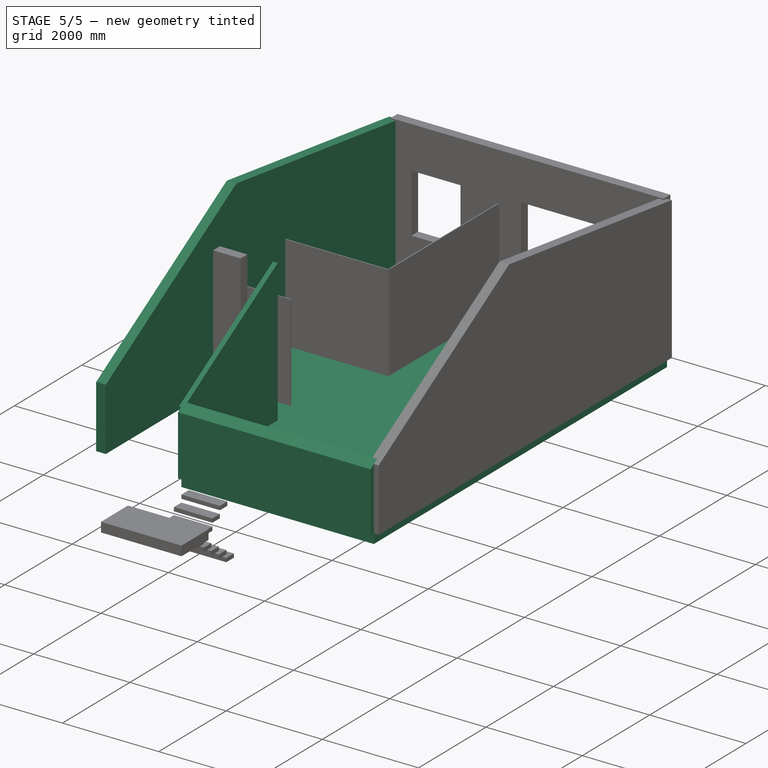
[diagram: stage 5 of 5 — iso view after this stage's code; geometry added in this stage tinted green]
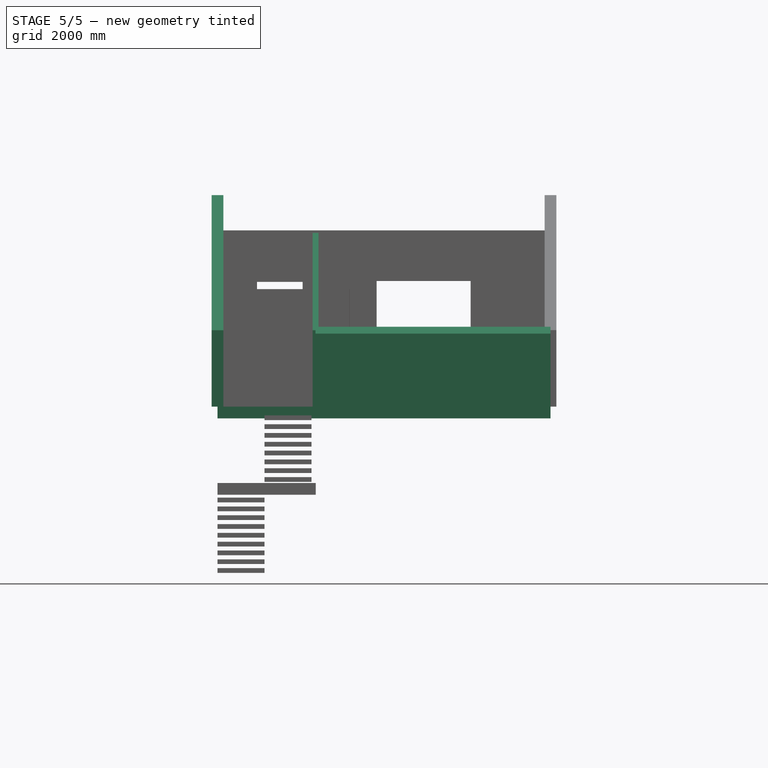
[diagram: stage 5 of 5 — front view after this stage's code; geometry added in this stage tinted green]
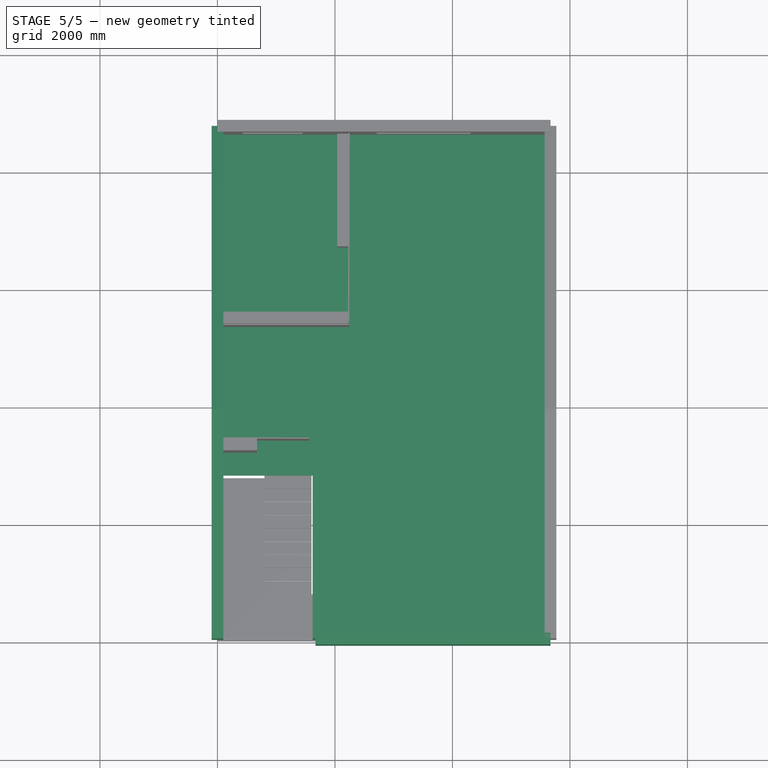
[diagram: stage 5 of 5 — top view after this stage's code; geometry added in this stage tinted green]
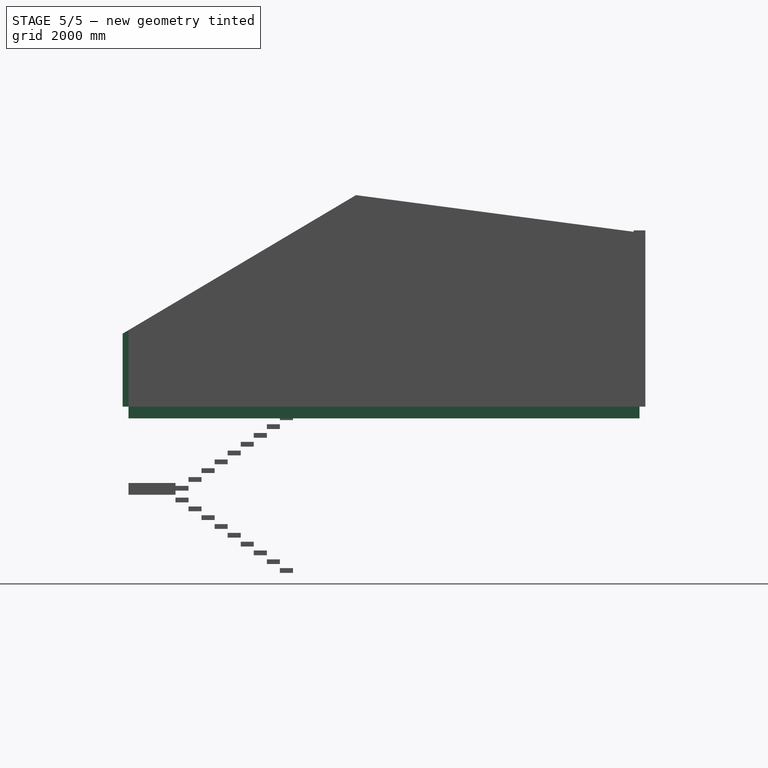
[diagram: stage 5 of 5 — right view after this stage's code; geometry added in this stage tinted green]
FEATURE [Sketcher::SketchObject] Sketch003  label="PlanBasePlancher"
  sketch-geometry (6):
    g0: LineSegment StartX=0 StartY=8700 StartZ=0 EndX=5670 EndY=8700 EndZ=0
    g1: LineSegment StartX=5670 StartY=8700 StartZ=0 EndX=5670 EndY=0 EndZ=0
    g2: LineSegment StartX=5670 StartY=0 StartZ=0 EndX=1670 EndY=0 EndZ=0
    g3: LineSegment StartX=1670 StartY=2800 StartZ=0 EndX=1670 EndY=0 EndZ=0
    g4: LineSegment StartX=1670 StartY=2800 StartZ=0 EndX=0 EndY=2800 EndZ=0
    g5: LineSegment StartX=0 StartY=8700 StartZ=0 EndX=0 EndY=2800 EndZ=0
  constraints (18):
    c: PointOnObject(g0,g-2)
    c: Horizontal(g0)
    c: Coincident(g1,g0)
    c: Vertical(g1)
    c: Coincident(g2,g1)
    c: PointOnObject(g2,g-1)
    c: Horizontal(g2)
    c: Vertical(g3)
    c: DistanceX(g0,g0) = 5670
    c: DistanceY(g3,g3) = 2800
    c: DistanceX(g-1,g3) = 1670
    c: Coincident(g2,g3)
    c: DistanceY(g1,g0) = 8700
    c: Coincident(g4,g3)
    c: Horizontal(g4)
    c: Coincident(g5,g0)
    c: Coincident(g5,g4)
    c: Vertical(g5)
FEATURE [PartDesign::Pad] Pad001  label="PadPlancher"
  Length = 200
  Length2 = 100
  Reversed = true
  Sketch = -> Sketch003
  Type = 0
FEATURE [Part::FeaturePython] Wall001  label="MurGauche"  # WARN: FeaturePython — macro-defined, semantics opaque (R4)
  Align = 2
  Base = -> Line
  Face = 0
  Height = 3700
  Length = 8700
  MoveWithHost = false
  Normal = (0,0,0)
  Role = 0
  Subtractions = -> [Pad002]
  Width = 200
FEATURE [Part::FeaturePython] Wall  label="MurMilieu"  # WARN: FeaturePython — macro-defined, semantics opaque (R4)
  Align = 2
  Base = -> Line001
  Face = 0
  Height = 3000
  Length = 2789.09
  MoveWithHost = false
  Normal = (0,0,0)
  Role = 0
  Subtractions = -> [Pad002]
  Width = 100
FEATURE [Part::FeaturePython] Wall002  label="MurJardin"  # WARN: FeaturePython — macro-defined, semantics opaque (R4)
  Align = 2
  Base = -> Line002
  Face = 0
  Height = 1600
  Length = 4000.33
  MoveWithHost = false
  Normal = (0,0,0)
  Role = 0
  Subtractions = -> [Pad002]
  Width = 200
FEATURE [Sketcher::SketchObject] Sketch009  label="PlanBase"
  sketch-geometry (6):
    g0: LineSegment StartX=0 StartY=8700 StartZ=0 EndX=5670 EndY=8700 EndZ=0
    g1: LineSegment StartX=5670 StartY=8700 StartZ=0 EndX=5670 EndY=0 EndZ=0
    g2: LineSegment StartX=5670 StartY=0 StartZ=0 EndX=1670 EndY=0 EndZ=0
    g3: LineSegment StartX=1670 StartY=2800 StartZ=0 EndX=1670 EndY=0 EndZ=0
    g4: LineSegment StartX=1670 StartY=2800 StartZ=0 EndX=0 EndY=2800 EndZ=0
    g5: LineSegment StartX=0 StartY=8700 StartZ=0 EndX=0 EndY=2800 EndZ=0
  constraints (18):
    c: PointOnObject(g0,g-2)
    c: Horizontal(g0)
    c: Coincident(g1,g0)
    c: Vertical(g1)
    c: Coincident(g2,g1)
    c: PointOnObject(g2,g-1)
    c: Horizontal(g2)
    c: Vertical(g3)
    c: DistanceX(g0,g0) = 5670
    c: DistanceY(g3,g3) = 2800
    c: DistanceX(g-1,g3) = 1670
    c: Coincident(g2,g3)
    c: DistanceY(g1,g0) = 8700
    c: Coincident(g4,g3)
    c: Horizontal(g4)
    c: Coincident(g5,g0)
    c: Coincident(g5,g4)
    c: Vertical(g5)
FEATURE [Drawing::FeaturePage] Page001
  EditableTexts = AUTHOR NAME | DRAWING TITLE | FreeCAD DRAWING | A1 | X / Y | SCALE | PN | DN | DD/MM/YYYY | REV A
FEATURE [Part::FeaturePython] Clone  label="Clone of Building"  # Draft clone (typed FeaturePython)
  Objects = -> [Building]
  Scale = (1,1,1)
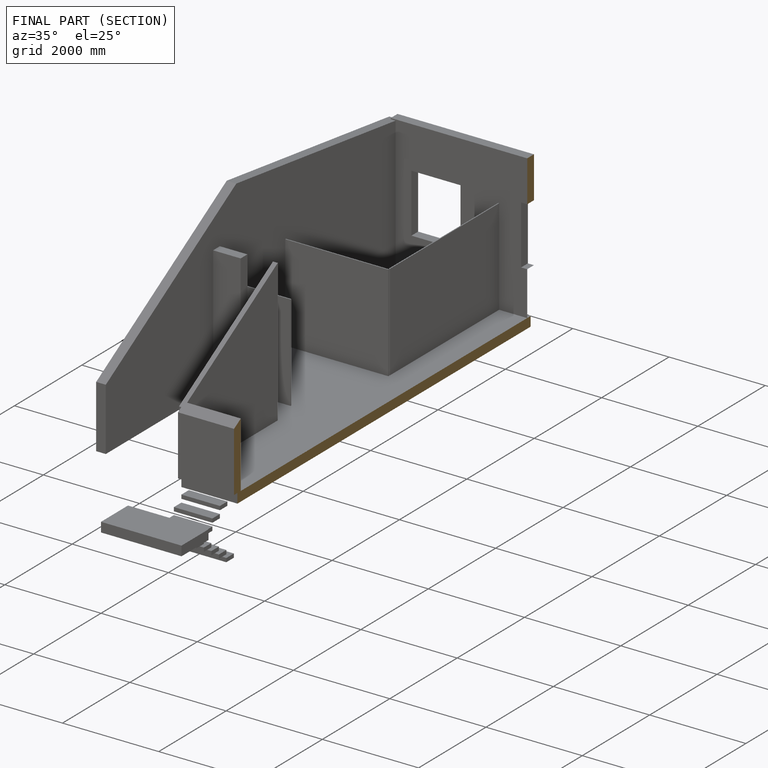
[diagram: finished part — half-section view (interior)]
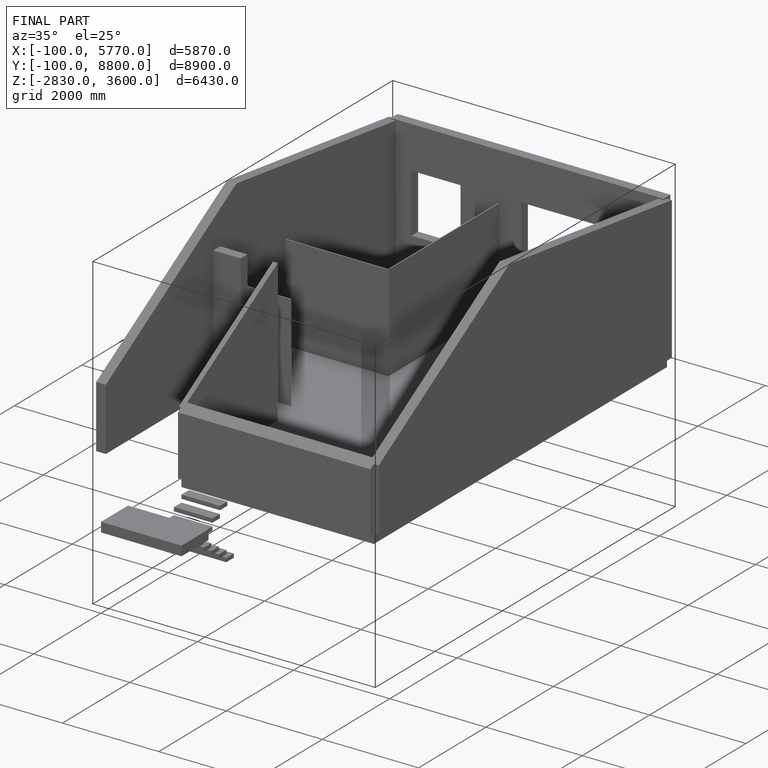
[diagram: finished part — iso view with bounding-box wireframe]
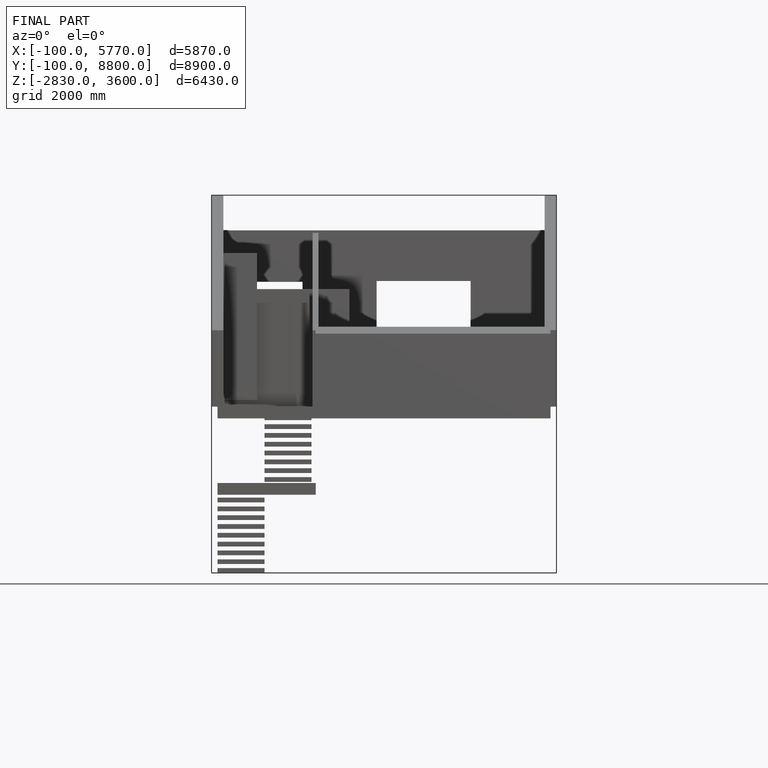
[diagram: finished part — front view with bounding-box wireframe]
